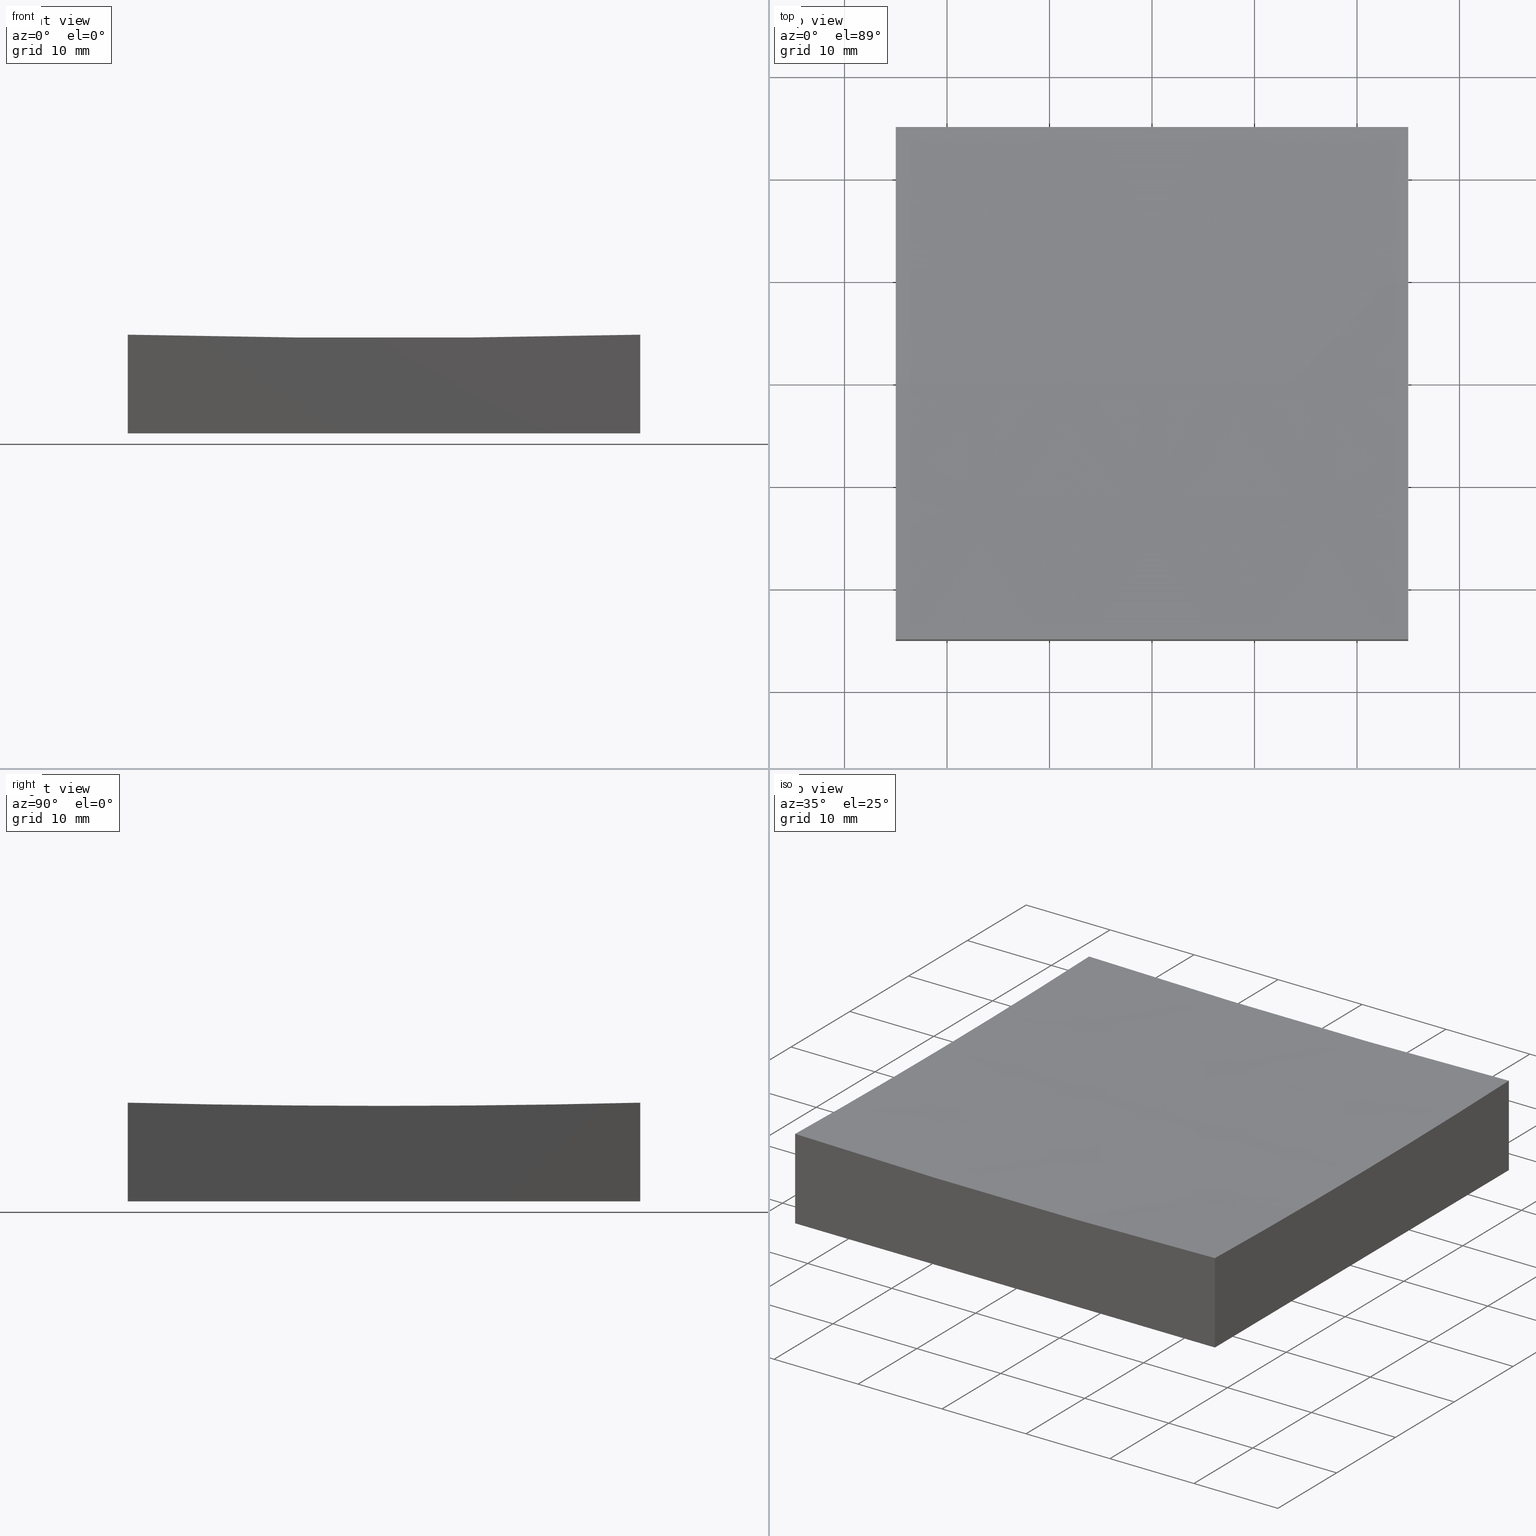
[diagram: canonical four-view strip — front | top / right | iso, engineering-drawing reading convention]
A machine part, canonical four-view strip (front | top / right | iso — engineering-drawing reading convention). The complete STEP part file that produces these views, byte-faithful:
ISO-10303-21;
HEADER;
FILE_DESCRIPTION (( 'STEP AP214' ),
    '1' );
FILE_NAME ('270057.STEP',
    '2020-06-08T06:00:28',
    ( '' ),
    ( '' ),
    'SwSTEP 2.0',
    'SolidWorks 2019',
    '' );
FILE_SCHEMA (( 'AUTOMOTIVE_DESIGN' ));
ENDSEC;

DATA;
#1 = DIRECTION ( 'NONE',  ( 6.938893903907228378E-17, -1.000000000000000000, 0.0000000000000000000 ) ) ;
#2 = CARTESIAN_POINT ( 'NONE',  ( -25.00000000000000000, -25.00000000000000711, 0.0000000000000000000 ) ) ;
#3 = FACE_OUTER_BOUND ( 'NONE', #84, .T. ) ;
#4 = AXIS2_PLACEMENT_3D ( 'NONE', #205, #230, #142 ) ;
#5 = ORIENTED_EDGE ( 'NONE', *, *, #201, .T. ) ;
#6 = EDGE_CURVE ( 'NONE', #138, #243, #117, .T. ) ;
#7 = EDGE_LOOP ( 'NONE', ( #17, #116, #120, #41, #133 ) ) ;
#8 = CARTESIAN_POINT ( 'NONE',  ( 25.00000000000000000, -25.00000000000000711, 50.00000000000000000 ) ) ;
#9 = DIRECTION ( 'NONE',  ( 6.938893903907228378E-17, -1.000000000000000000, 0.0000000000000000000 ) ) ;
#10 = CARTESIAN_POINT ( 'NONE',  ( -25.00000000000000355, 3.061616997868389748E-15, 9.312548843389723885 ) ) ;
#11 = EDGE_CURVE ( 'NONE', #220, #94, #45, .T. ) ;
#12 = DIRECTION ( 'NONE',  ( -0.0000000000000000000, -0.0000000000000000000, -1.000000000000000000 ) ) ;
#13 = VERTEX_POINT ( 'NONE', #21 ) ;
#14 = EDGE_CURVE ( 'NONE', #225, #138, #96, .T. ) ;
#15 = AXIS2_PLACEMENT_3D ( 'NONE', #231, #182, #157 ) ;
#16 = SURFACE_SIDE_STYLE ('',( #186 ) ) ;
#17 = ORIENTED_EDGE ( 'NONE', *, *, #11, .F. ) ;
#18 = SURFACE_STYLE_USAGE ( .BOTH. , #16 ) ;
#19 = ORIENTED_EDGE ( 'NONE', *, *, #14, .T. ) ;
#20 = EDGE_CURVE ( 'NONE', #151, #77, #248, .T. ) ;
#21 = CARTESIAN_POINT ( 'NONE',  ( 1.115058713056187768E-13, 0.0000000000000000000, 9.000000000000007105 ) ) ;
#22 = VERTEX_POINT ( 'NONE', #80 ) ;
#23 = EDGE_LOOP ( 'NONE', ( #213, #141, #173, #97, #63 ) ) ;
#24 = VECTOR ( 'NONE', #81, 1000.000000000000000 ) ;
#25 = AXIS2_PLACEMENT_3D ( 'NONE', #111, #234, #131 ) ;
#26 = CARTESIAN_POINT ( 'NONE',  ( -25.00000000000000355, 24.99999999999999645, 0.0000000000000000000 ) ) ;
#27 = APPLICATION_CONTEXT ( 'automotive_design' ) ;
#28 = DIRECTION ( 'NONE',  ( 0.0000000000000000000, 1.000000000000000000, 0.0000000000000000000 ) ) ;
#29 =( GEOMETRIC_REPRESENTATION_CONTEXT ( 3 ) GLOBAL_UNCERTAINTY_ASSIGNED_CONTEXT ( ( #158 ) ) GLOBAL_UNIT_ASSIGNED_CONTEXT ( ( #109, #38, #250 ) ) REPRESENTATION_CONTEXT ( 'NONE', 'WORKASPACE' ) );
#30 = CARTESIAN_POINT ( 'NONE',  ( 24.99999999999999645, 9.629649721936179265E-32, 9.312548843389723885 ) ) ;
#31 = DIRECTION ( 'NONE',  ( 0.0000000000000000000, 1.000000000000000000, 0.0000000000000000000 ) ) ;
#32 = AXIS2_PLACEMENT_3D ( 'NONE', #235, #172, #44 ) ;
#33 = CARTESIAN_POINT ( 'NONE',  ( -25.00000000000000000, -25.00000000000000711, 9.625195434665666738 ) ) ;
#34 =( LENGTH_UNIT ( ) NAMED_UNIT ( * ) SI_UNIT ( .MILLI., .METRE. ) );
#35 = PRODUCT_DEFINITION_SHAPE ( 'NONE', 'NONE',  #210 ) ;
#36 = PRESENTATION_STYLE_ASSIGNMENT (( #214 ) ) ;
#37 = ADVANCED_FACE ( 'NONE', ( #150 ), #152, .F. ) ;
#38 =( NAMED_UNIT ( * ) PLANE_ANGLE_UNIT ( ) SI_UNIT ( $, .RADIAN. ) );
#39 = FACE_OUTER_BOUND ( 'NONE', #7, .T. ) ;
#40 = AXIS2_PLACEMENT_3D ( 'NONE', #54, #148, #145 ) ;
#41 = ORIENTED_EDGE ( 'NONE', *, *, #51, .F. ) ;
#42 = ORIENTED_EDGE ( 'NONE', *, *, #125, .T. ) ;
#43 = ORIENTED_EDGE ( 'NONE', *, *, #74, .T. ) ;
#44 = DIRECTION ( 'NONE',  ( 0.0000000000000000000, -0.0000000000000000000, 1.000000000000000000 ) ) ;
#45 = CIRCLE ( 'NONE', #160, 999.6874511566102228 ) ;
#46 = ORIENTED_EDGE ( 'NONE', *, *, #147, .F. ) ;
#47 = DIRECTION ( 'NONE',  ( -1.000000000000000000, 1.224646799147353207E-16, 0.0000000000000000000 ) ) ;
#48 = DIRECTION ( 'NONE',  ( 0.0000000000000000000, 0.0000000000000000000, 1.000000000000000000 ) ) ;
#49 = LINE ( 'NONE', #203, #102 ) ;
#50 = CARTESIAN_POINT ( 'NONE',  ( -25.00000000000000355, -1.734723475976815969E-15, 1008.999999999999886 ) ) ;
#51 = EDGE_CURVE ( 'NONE', #22, #66, #56, .T. ) ;
#52 = SURFACE_SIDE_STYLE ('',( #75 ) ) ;
#53 = FILL_AREA_STYLE ('',( #188 ) ) ;
#54 = CARTESIAN_POINT ( 'NONE',  ( 24.99999999999999645, 24.99999999999999645, 50.00000000000000000 ) ) ;
#55 = PRODUCT ( '270057', '270057', '', ( #252 ) ) ;
#56 = LINE ( 'NONE', #114, #24 ) ;
#57 = ADVANCED_FACE ( 'NONE', ( #3 ), #239, .T. ) ;
#58 = DIRECTION ( 'NONE',  ( 1.000000000000000000, 0.0000000000000000000, 0.0000000000000000000 ) ) ;
#59 = AXIS2_PLACEMENT_3D ( 'NONE', #178, #222, #99 ) ;
#60 = ADVANCED_FACE ( 'NONE', ( #71 ), #181, .F. ) ;
#61 = CARTESIAN_POINT ( 'NONE',  ( -25.00000000000000355, 24.99999999999999645, 50.00000000000000000 ) ) ;
#62 = ORIENTED_EDGE ( 'NONE', *, *, #85, .F. ) ;
#63 = ORIENTED_EDGE ( 'NONE', *, *, #11, .T. ) ;
#64 = PRESENTATION_LAYER_ASSIGNMENT (  '', '', ( #176 ) ) ;
#65 = CARTESIAN_POINT ( 'NONE',  ( 1.235668620339679159E-13, 0.0000000000000000000, 1008.999999999999886 ) ) ;
#66 = VERTEX_POINT ( 'NONE', #69 ) ;
#67 = EDGE_CURVE ( 'NONE', #13, #77, #224, .T. ) ;
#68 =( GEOMETRIC_REPRESENTATION_CONTEXT ( 3 ) GLOBAL_UNCERTAINTY_ASSIGNED_CONTEXT ( ( #183 ) ) GLOBAL_UNIT_ASSIGNED_CONTEXT ( ( #34, #233, #236 ) ) REPRESENTATION_CONTEXT ( 'NONE', 'WORKASPACE' ) );
#69 = CARTESIAN_POINT ( 'NONE',  ( 24.99999999999999645, 24.99999999999999645, 0.0000000000000000000 ) ) ;
#70 = ORIENTED_EDGE ( 'NONE', *, *, #6, .F. ) ;
#71 = FACE_OUTER_BOUND ( 'NONE', #219, .T. ) ;
#72 = SPHERICAL_SURFACE ( 'NONE', #88, 999.9999999999998863 ) ;
#73 = CARTESIAN_POINT ( 'NONE',  ( -25.00000000000000000, -25.00000000000000711, 50.00000000000000000 ) ) ;
#74 = EDGE_CURVE ( 'NONE', #66, #243, #49, .T. ) ;
#75 = SURFACE_STYLE_FILL_AREA ( #92 ) ;
#76 =( GEOMETRIC_REPRESENTATION_CONTEXT ( 3 ) GLOBAL_UNCERTAINTY_ASSIGNED_CONTEXT ( ( #241 ) ) GLOBAL_UNIT_ASSIGNED_CONTEXT ( ( #78, #170, #107 ) ) REPRESENTATION_CONTEXT ( 'NONE', 'WORKASPACE' ) );
#77 = VERTEX_POINT ( 'NONE', #10 ) ;
#78 =( LENGTH_UNIT ( ) NAMED_UNIT ( * ) SI_UNIT ( .MILLI., .METRE. ) );
#79 = AXIS2_PLACEMENT_3D ( 'NONE', #61, #28, #121 ) ;
#80 = CARTESIAN_POINT ( 'NONE',  ( 24.99999999999999645, 24.99999999999999645, 9.625195434665666738 ) ) ;
#81 = DIRECTION ( 'NONE',  ( -0.0000000000000000000, -0.0000000000000000000, -1.000000000000000000 ) ) ;
#82 = ORIENTED_EDGE ( 'NONE', *, *, #244, .T. ) ;
#83 = VECTOR ( 'NONE', #159, 1000.000000000000000 ) ;
#84 = EDGE_LOOP ( 'NONE', ( #154, #174, #108, #62 ) ) ;
#85 = EDGE_CURVE ( 'NONE', #237, #225, #163, .T. ) ;
#86 = PLANE ( 'NONE',  #15 ) ;
#87 = DIRECTION ( 'NONE',  ( 1.000000000000000000, 6.938893903907228378E-17, -0.0000000000000000000 ) ) ;
#88 = AXIS2_PLACEMENT_3D ( 'NONE', #137, #119, #251 ) ;
#89 = CARTESIAN_POINT ( 'NONE',  ( 1.235668620339679159E-13, 24.99999999999999645, 1008.999999999999886 ) ) ;
#90 = DIRECTION ( 'NONE',  ( -0.0000000000000000000, -0.0000000000000000000, -1.000000000000000000 ) ) ;
#91 = CIRCLE ( 'NONE', #169, 999.6874511566101091 ) ;
#92 = FILL_AREA_STYLE ('',( #211 ) ) ;
#93 = PRODUCT_DEFINITION_FORMATION_WITH_SPECIFIED_SOURCE ( '�κ�', '', #55, .NOT_KNOWN. ) ;
#94 = VERTEX_POINT ( 'NONE', #30 ) ;
#95 = DIRECTION ( 'NONE',  ( -6.941063325221421144E-17, 1.000000000000000000, 0.0000000000000000000 ) ) ;
#96 = LINE ( 'NONE', #26, #217 ) ;
#97 = ORIENTED_EDGE ( 'NONE', *, *, #199, .F. ) ;
#98 = ADVANCED_BREP_SHAPE_REPRESENTATION ( '270057', ( #206, #167 ), #76 ) ;
#99 = DIRECTION ( 'NONE',  ( -6.941063325221421144E-17, 1.000000000000000000, 0.0000000000000000000 ) ) ;
#100 = FACE_OUTER_BOUND ( 'NONE', #23, .T. ) ;
#101 = DIRECTION ( 'NONE',  ( 0.0000000000000000000, 0.0000000000000000000, -1.000000000000000000 ) ) ;
#102 = VECTOR ( 'NONE', #9, 1000.000000000000000 ) ;
#103 = FACE_OUTER_BOUND ( 'NONE', #171, .T. ) ;
#104 = APPLICATION_PROTOCOL_DEFINITION ( 'draft international standard', 'automotive_design', 1998, #27 ) ;
#105 = PLANE ( 'NONE',  #135 ) ;
#106 = PRODUCT_DEFINITION_CONTEXT ( 'detailed design', #226, 'design' ) ;
#107 =( NAMED_UNIT ( * ) SI_UNIT ( $, .STERADIAN. ) SOLID_ANGLE_UNIT ( ) );
#108 = ORIENTED_EDGE ( 'NONE', *, *, #244, .F. ) ;
#109 =( LENGTH_UNIT ( ) NAMED_UNIT ( * ) SI_UNIT ( .MILLI., .METRE. ) );
#110 = PLANE ( 'NONE',  #40 ) ;
#111 = CARTESIAN_POINT ( 'NONE',  ( 24.99999999999999645, 1.734723475976798220E-15, 1008.999999999999886 ) ) ;
#112 = VECTOR ( 'NONE', #127, 1000.000000000000000 ) ;
#113 = CARTESIAN_POINT ( 'NONE',  ( 25.00000000000000000, -25.00000000000000711, 0.0000000000000000000 ) ) ;
#114 = CARTESIAN_POINT ( 'NONE',  ( 24.99999999999999645, 24.99999999999999645, 50.00000000000000000 ) ) ;
#115 = CARTESIAN_POINT ( 'NONE',  ( 24.99999999999999645, 1.734723475976798220E-15, 1008.999999999999886 ) ) ;
#116 = ORIENTED_EDGE ( 'NONE', *, *, #147, .T. ) ;
#117 = LINE ( 'NONE', #2, #128 ) ;
#118 = AXIS2_PLACEMENT_3D ( 'NONE', #89, #31, #227 ) ;
#119 = DIRECTION ( 'NONE',  ( -0.0000000000000000000, 1.000000000000000000, 0.0000000000000000000 ) ) ;
#120 = ORIENTED_EDGE ( 'NONE', *, *, #74, .F. ) ;
#121 = DIRECTION ( 'NONE',  ( 0.0000000000000000000, -0.0000000000000000000, 1.000000000000000000 ) ) ;
#122 = STYLED_ITEM ( 'NONE', ( #36 ), #98 ) ;
#123 = CARTESIAN_POINT ( 'NONE',  ( -25.00000000000000355, 24.99999999999999645, 50.00000000000000000 ) ) ;
#124 = DIRECTION ( 'NONE',  ( 1.000000000000000000, 6.938893903907228378E-17, -0.0000000000000000000 ) ) ;
#125 = EDGE_CURVE ( 'NONE', #13, #94, #187, .T. ) ;
#126 = SHAPE_DEFINITION_REPRESENTATION ( #35, #98 ) ;
#127 = DIRECTION ( 'NONE',  ( 1.000000000000000000, 0.0000000000000000000, 0.0000000000000000000 ) ) ;
#128 = VECTOR ( 'NONE', #58, 1000.000000000000000 ) ;
#129 = CARTESIAN_POINT ( 'NONE',  ( -25.00000000000000355, 24.99999999999999645, 0.0000000000000000000 ) ) ;
#130 = CIRCLE ( 'NONE', #202, 999.6874511566102228 ) ;
#131 = DIRECTION ( 'NONE',  ( -6.941063325221421144E-17, 1.000000000000000000, 0.0000000000000000000 ) ) ;
#132 = ORIENTED_EDGE ( 'NONE', *, *, #14, .F. ) ;
#133 = ORIENTED_EDGE ( 'NONE', *, *, #201, .F. ) ;
#134 = ORIENTED_EDGE ( 'NONE', *, *, #85, .T. ) ;
#135 = AXIS2_PLACEMENT_3D ( 'NONE', #179, #87, #245 ) ;
#136 = ADVANCED_FACE ( 'NONE', ( #100 ), #72, .F. ) ;
#137 = CARTESIAN_POINT ( 'NONE',  ( 1.235668620339679159E-13, 0.0000000000000000000, 1008.999999999999886 ) ) ;
#138 = VERTEX_POINT ( 'NONE', #249 ) ;
#139 = COLOUR_RGB ( '',1.000000000000000000, 1.000000000000000000, 1.000000000000000000 ) ;
#140 = CARTESIAN_POINT ( 'NONE',  ( 1.235668620339679159E-13, -25.00000000000000711, 1008.999999999999886 ) ) ;
#141 = ORIENTED_EDGE ( 'NONE', *, *, #67, .T. ) ;
#142 = DIRECTION ( 'NONE',  ( 1.000000000000000000, 0.0000000000000000000, 0.0000000000000000000 ) ) ;
#143 = EDGE_CURVE ( 'NONE', #22, #237, #198, .T. ) ;
#144 = LINE ( 'NONE', #73, #83 ) ;
#145 = DIRECTION ( 'NONE',  ( -6.938893903907228378E-17, 1.000000000000000000, 0.0000000000000000000 ) ) ;
#146 = COLOUR_RGB ( '',1.000000000000000000, 1.000000000000000000, 1.000000000000000000 ) ;
#147 = EDGE_CURVE ( 'NONE', #220, #243, #164, .T. ) ;
#148 = DIRECTION ( 'NONE',  ( 1.000000000000000000, 6.938893903907228378E-17, -0.0000000000000000000 ) ) ;
#149 = CLOSED_SHELL ( 'NONE', ( #136, #57, #192, #37, #221, #162, #60 ) ) ;
#150 = FACE_OUTER_BOUND ( 'NONE', #247, .T. ) ;
#151 = VERTEX_POINT ( 'NONE', #33 ) ;
#152 = PLANE ( 'NONE',  #32 ) ;
#153 = VECTOR ( 'NONE', #90, 1000.000000000000000 ) ;
#154 = ORIENTED_EDGE ( 'NONE', *, *, #143, .F. ) ;
#155 = EDGE_CURVE ( 'NONE', #151, #138, #144, .T. ) ;
#156 = ORIENTED_EDGE ( 'NONE', *, *, #180, .T. ) ;
#157 = DIRECTION ( 'NONE',  ( -1.000000000000000000, 0.0000000000000000000, -0.0000000000000000000 ) ) ;
#158 = UNCERTAINTY_MEASURE_WITH_UNIT (LENGTH_MEASURE( 1.000000000000000082E-05 ), #109, 'distance_accuracy_value', 'NONE');
#159 = DIRECTION ( 'NONE',  ( -0.0000000000000000000, -0.0000000000000000000, -1.000000000000000000 ) ) ;
#160 = AXIS2_PLACEMENT_3D ( 'NONE', #115, #200, #95 ) ;
#161 = DIRECTION ( 'NONE',  ( -6.941063325221421144E-17, 1.000000000000000000, 0.0000000000000000000 ) ) ;
#162 = ADVANCED_FACE ( 'NONE', ( #103 ), #86, .T. ) ;
#163 = LINE ( 'NONE', #123, #238 ) ;
#164 = LINE ( 'NONE', #8, #153 ) ;
#165 = ORIENTED_EDGE ( 'NONE', *, *, #143, .T. ) ;
#166 = PRESENTATION_STYLE_ASSIGNMENT (( #18 ) ) ;
#167 = AXIS2_PLACEMENT_3D ( 'NONE', #185, #212, #215 ) ;
#168 = ORIENTED_EDGE ( 'NONE', *, *, #155, .F. ) ;
#169 = AXIS2_PLACEMENT_3D ( 'NONE', #140, #229, #48 ) ;
#170 =( NAMED_UNIT ( * ) PLANE_ANGLE_UNIT ( ) SI_UNIT ( $, .RADIAN. ) );
#171 = EDGE_LOOP ( 'NONE', ( #82, #43, #70, #132 ) ) ;
#172 = DIRECTION ( 'NONE',  ( 0.0000000000000000000, 1.000000000000000000, 0.0000000000000000000 ) ) ;
#173 = ORIENTED_EDGE ( 'NONE', *, *, #20, .F. ) ;
#174 = ORIENTED_EDGE ( 'NONE', *, *, #51, .T. ) ;
#175 = ORIENTED_EDGE ( 'NONE', *, *, #199, .T. ) ;
#176 = STYLED_ITEM ( 'NONE', ( #166 ), #206 ) ;
#177 = MECHANICAL_DESIGN_GEOMETRIC_PRESENTATION_REPRESENTATION (  '', ( #176 ), #68 ) ;
#178 = CARTESIAN_POINT ( 'NONE',  ( -25.00000000000000355, -1.734723475976815969E-15, 1008.999999999999886 ) ) ;
#179 = CARTESIAN_POINT ( 'NONE',  ( -25.00000000000000355, 24.99999999999999645, 50.00000000000000000 ) ) ;
#180 = EDGE_CURVE ( 'NONE', #77, #237, #130, .T. ) ;
#181 = SPHERICAL_SURFACE ( 'NONE', #4, 999.9999999999998863 ) ;
#182 = DIRECTION ( 'NONE',  ( 0.0000000000000000000, 0.0000000000000000000, -1.000000000000000000 ) ) ;
#183 = UNCERTAINTY_MEASURE_WITH_UNIT (LENGTH_MEASURE( 1.000000000000000082E-05 ), #34, 'distance_accuracy_value', 'NONE');
#184 = DIRECTION ( 'NONE',  ( 0.0000000000000000000, -1.000000000000000000, -0.0000000000000000000 ) ) ;
#185 = CARTESIAN_POINT ( 'NONE',  ( 0.0000000000000000000, 0.0000000000000000000, 0.0000000000000000000 ) ) ;
#186 = SURFACE_STYLE_FILL_AREA ( #53 ) ;
#187 = CIRCLE ( 'NONE', #208, 999.9999999999998863 ) ;
#188 = FILL_AREA_STYLE_COLOUR ( '', #139 ) ;
#189 = CARTESIAN_POINT ( 'NONE',  ( -25.00000000000000355, 24.99999999999999645, 0.0000000000000000000 ) ) ;
#190 = MECHANICAL_DESIGN_GEOMETRIC_PRESENTATION_REPRESENTATION (  '', ( #122 ), #29 ) ;
#191 = LINE ( 'NONE', #189, #112 ) ;
#192 = ADVANCED_FACE ( 'NONE', ( #209 ), #105, .F. ) ;
#193 = EDGE_LOOP ( 'NONE', ( #168, #204, #156, #134, #19 ) ) ;
#194 = ORIENTED_EDGE ( 'NONE', *, *, #180, .F. ) ;
#195 = ORIENTED_EDGE ( 'NONE', *, *, #67, .F. ) ;
#196 = PRODUCT_RELATED_PRODUCT_CATEGORY ( 'part', '', ( #55 ) ) ;
#197 = ORIENTED_EDGE ( 'NONE', *, *, #155, .T. ) ;
#198 = CIRCLE ( 'NONE', #118, 999.6874511566101091 ) ;
#199 = EDGE_CURVE ( 'NONE', #220, #151, #91, .T. ) ;
#200 = DIRECTION ( 'NONE',  ( 1.000000000000000000, 6.938893903907228378E-17, -0.0000000000000000000 ) ) ;
#201 = EDGE_CURVE ( 'NONE', #94, #22, #228, .T. ) ;
#202 = AXIS2_PLACEMENT_3D ( 'NONE', #50, #124, #161 ) ;
#203 = CARTESIAN_POINT ( 'NONE',  ( 24.99999999999999645, 24.99999999999999645, 0.0000000000000000000 ) ) ;
#204 = ORIENTED_EDGE ( 'NONE', *, *, #20, .T. ) ;
#205 = CARTESIAN_POINT ( 'NONE',  ( 1.235668620339679159E-13, 0.0000000000000000000, 1008.999999999999886 ) ) ;
#206 = MANIFOLD_SOLID_BREP ( '�г�-��ת2', #149 ) ;
#207 = CARTESIAN_POINT ( 'NONE',  ( 1.235668620339679159E-13, 0.0000000000000000000, 1008.999999999999886 ) ) ;
#208 = AXIS2_PLACEMENT_3D ( 'NONE', #207, #184, #101 ) ;
#209 = FACE_OUTER_BOUND ( 'NONE', #193, .T. ) ;
#210 = PRODUCT_DEFINITION ( 'δ֪', '', #93, #106 ) ;
#211 = FILL_AREA_STYLE_COLOUR ( '', #146 ) ;
#212 = DIRECTION ( 'NONE',  ( 0.0000000000000000000, 0.0000000000000000000, 1.000000000000000000 ) ) ;
#213 = ORIENTED_EDGE ( 'NONE', *, *, #125, .F. ) ;
#214 = SURFACE_STYLE_USAGE ( .BOTH. , #52 ) ;
#215 = DIRECTION ( 'NONE',  ( 1.000000000000000000, 0.0000000000000000000, 0.0000000000000000000 ) ) ;
#216 = CARTESIAN_POINT ( 'NONE',  ( -25.00000000000000711, 24.99999999999999645, 9.625195434665666738 ) ) ;
#217 = VECTOR ( 'NONE', #1, 1000.000000000000000 ) ;
#218 = CARTESIAN_POINT ( 'NONE',  ( 25.00000000000000000, -25.00000000000000711, 9.625195434665666738 ) ) ;
#219 = EDGE_LOOP ( 'NONE', ( #195, #42, #5, #165, #194 ) ) ;
#220 = VERTEX_POINT ( 'NONE', #218 ) ;
#221 = ADVANCED_FACE ( 'NONE', ( #39 ), #110, .T. ) ;
#222 = DIRECTION ( 'NONE',  ( 1.000000000000000000, 6.938893903907228378E-17, -0.0000000000000000000 ) ) ;
#223 = PRESENTATION_LAYER_ASSIGNMENT (  '', '', ( #122 ) ) ;
#224 = CIRCLE ( 'NONE', #246, 999.9999999999998863 ) ;
#225 = VERTEX_POINT ( 'NONE', #129 ) ;
#226 = APPLICATION_CONTEXT ( 'automotive_design' ) ;
#227 = DIRECTION ( 'NONE',  ( 0.0000000000000000000, 0.0000000000000000000, 1.000000000000000000 ) ) ;
#228 = CIRCLE ( 'NONE', #25, 999.6874511566102228 ) ;
#229 = DIRECTION ( 'NONE',  ( 0.0000000000000000000, 1.000000000000000000, 0.0000000000000000000 ) ) ;
#230 = DIRECTION ( 'NONE',  ( -0.0000000000000000000, 1.000000000000000000, 0.0000000000000000000 ) ) ;
#231 = CARTESIAN_POINT ( 'NONE',  ( 0.0000000000000000000, 0.0000000000000000000, 0.0000000000000000000 ) ) ;
#232 = APPLICATION_PROTOCOL_DEFINITION ( 'draft international standard', 'automotive_design', 1998, #226 ) ;
#233 =( NAMED_UNIT ( * ) PLANE_ANGLE_UNIT ( ) SI_UNIT ( $, .RADIAN. ) );
#234 = DIRECTION ( 'NONE',  ( 1.000000000000000000, 6.938893903907228378E-17, -0.0000000000000000000 ) ) ;
#235 = CARTESIAN_POINT ( 'NONE',  ( -25.00000000000000000, -25.00000000000000711, 50.00000000000000000 ) ) ;
#236 =( NAMED_UNIT ( * ) SI_UNIT ( $, .STERADIAN. ) SOLID_ANGLE_UNIT ( ) );
#237 = VERTEX_POINT ( 'NONE', #216 ) ;
#238 = VECTOR ( 'NONE', #12, 1000.000000000000000 ) ;
#239 = PLANE ( 'NONE',  #79 ) ;
#240 = ORIENTED_EDGE ( 'NONE', *, *, #6, .T. ) ;
#241 = UNCERTAINTY_MEASURE_WITH_UNIT (LENGTH_MEASURE( 1.000000000000000082E-05 ), #78, 'distance_accuracy_value', 'NONE');
#242 = DIRECTION ( 'NONE',  ( 1.224646799147353207E-16, 1.000000000000000000, -8.975844282311158940E-33 ) ) ;
#243 = VERTEX_POINT ( 'NONE', #113 ) ;
#244 = EDGE_CURVE ( 'NONE', #225, #66, #191, .T. ) ;
#245 = DIRECTION ( 'NONE',  ( -6.938893903907228378E-17, 1.000000000000000000, 0.0000000000000000000 ) ) ;
#246 = AXIS2_PLACEMENT_3D ( 'NONE', #65, #242, #47 ) ;
#247 = EDGE_LOOP ( 'NONE', ( #46, #175, #197, #240 ) ) ;
#248 = CIRCLE ( 'NONE', #59, 999.6874511566102228 ) ;
#249 = CARTESIAN_POINT ( 'NONE',  ( -25.00000000000000000, -25.00000000000000711, 0.0000000000000000000 ) ) ;
#250 =( NAMED_UNIT ( * ) SI_UNIT ( $, .STERADIAN. ) SOLID_ANGLE_UNIT ( ) );
#251 = DIRECTION ( 'NONE',  ( 1.000000000000000000, 0.0000000000000000000, 0.0000000000000000000 ) ) ;
#252 = PRODUCT_CONTEXT ( 'NONE', #27, 'mechanical' ) ;
ENDSEC;
END-ISO-10303-21;
